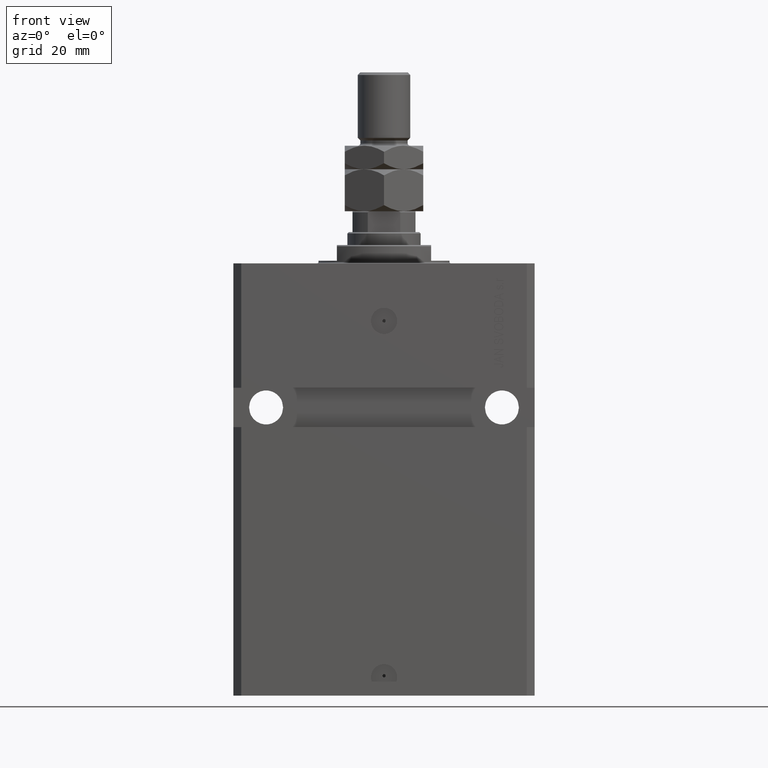
[diagram: clean part render]
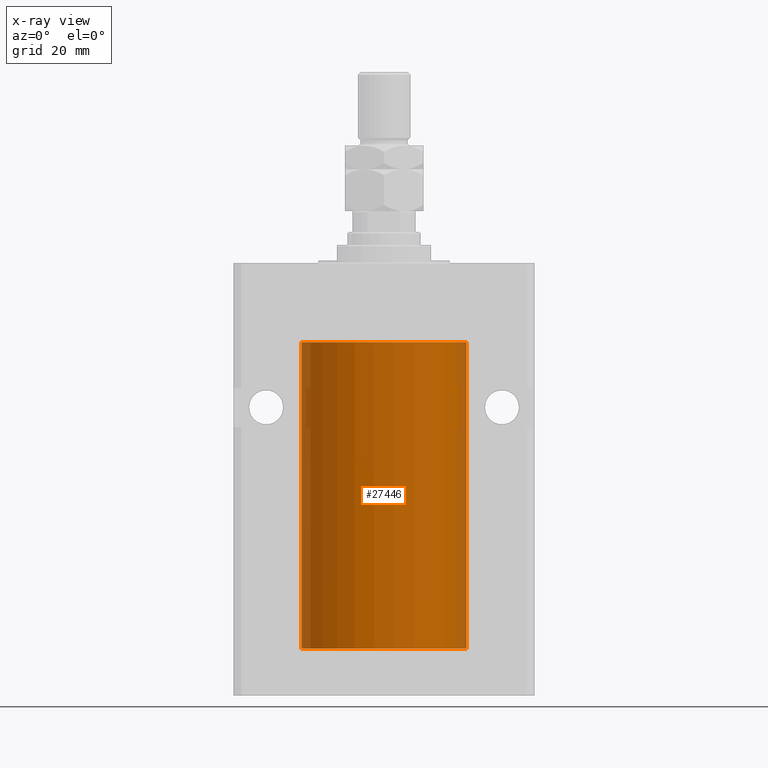
[diagram: x-ray — body ghosted, one internal face saturated and labeled with its STEP entity id]
A machine part, front view, then the same camera in x-ray: the body is ghosted and one INTERNAL B-rep face — a face not visible from any outside direction — is saturated and labeled: STEP entity #27446.
In plain terms, the highlighted cylindrical surface (partial cylindrical patch) has radius 31.5 mm, axis along (0, 0, 1).
Its self-contained STEP definition (entity closure, byte-faithful):
#584 = DIRECTION ( 'NONE',  ( 1.000000000000000000, 0.000000000000000000, 0.000000000000000000 ) ) ;
#761 = CARTESIAN_POINT ( 'NONE',  ( -31.50000000000006395, 3.480980645563073824E-13, -144.6250000000032401 ) ) ;
#3295 = VERTEX_POINT ( 'NONE', #761 ) ;
#4259 = CARTESIAN_POINT ( 'NONE',  ( -31.50000000000000000, -1.368427456661360094E-15, -143.3750000000000000 ) ) ;
#4521 = ORIENTED_EDGE ( 'NONE', *, *, #19724, .F. ) ;
#4599 = CARTESIAN_POINT ( 'NONE',  ( 31.50000000000000000, 3.210795403918932462E-15, -144.6250000000000284 ) ) ;
#4720 = CARTESIAN_POINT ( 'NONE',  ( 0.000000000000000000, 0.000000000000000000, -30.10000000000000142 ) ) ;
#5005 = DIRECTION ( 'NONE',  ( 1.000000000000000000, 0.000000000000000000, 0.000000000000000000 ) ) ;
#5763 = DIRECTION ( 'NONE',  ( 1.000000000000000000, 0.000000000000000000, 0.000000000000000000 ) ) ;
#6315 = CARTESIAN_POINT ( 'NONE',  ( 31.50000000000000000, 3.210795403918932462E-15, -144.6250000000000284 ) ) ;
#6396 = EDGE_CURVE ( 'NONE', #10203, #40436, #29543, .T. ) ;
#6858 = CIRCLE ( 'NONE', #37119, 31.50000000000000000 ) ;
#6984 = B_SPLINE_CURVE_WITH_KNOTS ( 'NONE', 3,
 ( #17703, #39084, #42954, #40030, #16991, #28878 ),
 .UNSPECIFIED., .F., .F.,
 ( 4, 2, 4 ),
 ( 0.001954083649707734349, 0.002442753259884905461, 0.002931422870062076573 ),
 .UNSPECIFIED. ) ;
#7897 = CARTESIAN_POINT ( 'NONE',  ( -31.50000000000000000, -1.368427456661360094E-15, -143.3750000000000000 ) ) ;
#7913 = CARTESIAN_POINT ( 'NONE',  ( -31.49527619204366857, -0.5575625051463340975, -143.6738430774043422 ) ) ;
#8391 = CARTESIAN_POINT ( 'NONE',  ( -31.49999999999999289, -0.1651478413230000331, -143.3749999999999716 ) ) ;
#8656 = DIRECTION ( 'NONE',  ( -0.000000000000000000, -0.000000000000000000, 1.000000000000000000 ) ) ;
#9463 = VECTOR ( 'NONE', #26858, 1000.000000000000000 ) ;
#10203 = VERTEX_POINT ( 'NONE', #18520 ) ;
#10489 = VERTEX_POINT ( 'NONE', #6315 ) ;
#10802 = VECTOR ( 'NONE', #28853, 1000.000000000000000 ) ;
#11401 = CARTESIAN_POINT ( 'NONE',  ( 31.49851597466318864, -0.3267811800504842323, -144.5571701479423155 ) ) ;
#11618 = EDGE_CURVE ( 'NONE', #27918, #10489, #13151, .T. ) ;
#13017 = CARTESIAN_POINT ( 'NONE',  ( 0.000000000000000000, 0.000000000000000000, -147.1000000000000227 ) ) ;
#13151 = B_SPLINE_CURVE_WITH_KNOTS ( 'NONE', 3,
 ( #22363, #26266, #44680, #11401, #41043, #4599 ),
 .UNSPECIFIED., .F., .F.,
 ( 4, 2, 4 ),
 ( 0.002931422870062076573, 0.003419574257808121083, 0.003907725645554165593 ),
 .UNSPECIFIED. ) ;
#14264 = CARTESIAN_POINT ( 'NONE',  ( -31.50000000000000000, 3.857637417314162689E-15, -147.1000000000000227 ) ) ;
#15361 = EDGE_CURVE ( 'NONE', #43185, #47074, #36072, .T. ) ;
#15682 = VERTEX_POINT ( 'NONE', #44660 ) ;
#15872 = EDGE_CURVE ( 'NONE', #30726, #3295, #17682, .T. ) ;
#16739 = ORIENTED_EDGE ( 'NONE', *, *, #6396, .F. ) ;
#16991 = CARTESIAN_POINT ( 'NONE',  ( 31.49379899281761652, -0.6250000000000300870, -143.8350496352848040 ) ) ;
#17682 = LINE ( 'NONE', #14264, #10802 ) ;
#17703 = CARTESIAN_POINT ( 'NONE',  ( 31.50000000000006395, 3.442404271195566139E-13, -143.3749999999967883 ) ) ;
#18520 = CARTESIAN_POINT ( 'NONE',  ( 31.50000000000006395, 3.442404271195566139E-13, -143.3749999999967883 ) ) ;
#19724 = EDGE_CURVE ( 'NONE', #30726, #15682, #6858, .T. ) ;
#20104 = VECTOR ( 'NONE', #43345, 1000.000000000000000 ) ;
#20333 = CYLINDRICAL_SURFACE ( 'NONE', #33493, 31.50000000000000000 ) ;
#22157 = CARTESIAN_POINT ( 'NONE',  ( -31.50000000000000000, 3.857637417314162689E-15, -147.1000000000000227 ) ) ;
#22273 = CARTESIAN_POINT ( 'NONE',  ( -31.50000000000006395, 3.480980645563073824E-13, -144.6250000000032401 ) ) ;
#22363 = CARTESIAN_POINT ( 'NONE',  ( 31.49379899281761652, -0.6250000000000300870, -144.0000000000000284 ) ) ;
#22481 = CARTESIAN_POINT ( 'NONE',  ( 31.50000000000000000, 0.000000000000000000, -147.1000000000000227 ) ) ;
#23062 = ORIENTED_EDGE ( 'NONE', *, *, #11618, .T. ) ;
#23282 = ORIENTED_EDGE ( 'NONE', *, *, #35607, .T. ) ;
#24451 = FACE_OUTER_BOUND ( 'NONE', #27376, .T. ) ;
#24980 = CARTESIAN_POINT ( 'NONE',  ( 0.000000000000000000, 0.000000000000000000, -147.1000000000000227 ) ) ;
#25432 = CARTESIAN_POINT ( 'NONE',  ( 31.50000000000000000, 0.000000000000000000, -147.1000000000000227 ) ) ;
#26266 = CARTESIAN_POINT ( 'NONE',  ( 31.49379899281760942, -0.6250000000000300870, -144.1647754387996088 ) ) ;
#26858 = DIRECTION ( 'NONE',  ( -0.000000000000000000, -0.000000000000000000, 1.000000000000000000 ) ) ;
#27376 = EDGE_LOOP ( 'NONE', ( #4521, #36834, #43635, #42669, #40961, #16739, #23282, #23062, #44788 ) ) ;
#27446 = ADVANCED_FACE ( 'NONE', ( #24451 ), #20333, .F. ) ;
#27568 = EDGE_CURVE ( 'NONE', #15682, #10489, #33643, .T. ) ;
#27918 = VERTEX_POINT ( 'NONE', #34556 ) ;
#28853 = DIRECTION ( 'NONE',  ( -0.000000000000000000, -0.000000000000000000, 1.000000000000000000 ) ) ;
#28878 = CARTESIAN_POINT ( 'NONE',  ( 31.49379899281761652, -0.6250000000000300870, -144.0000000000000284 ) ) ;
#29543 = LINE ( 'NONE', #25432, #44762 ) ;
#30726 = VERTEX_POINT ( 'NONE', #42499 ) ;
#31545 = DIRECTION ( 'NONE',  ( 0.000000000000000000, 0.000000000000000000, 1.000000000000000000 ) ) ;
#32959 = EDGE_CURVE ( 'NONE', #3295, #43185, #47160, .T. ) ;
#33446 = CARTESIAN_POINT ( 'NONE',  ( -31.49380174372966223, -0.6248613812773761156, -144.1653655539884085 ) ) ;
#33493 = AXIS2_PLACEMENT_3D ( 'NONE', #13017, #8656, #5005 ) ;
#33643 = LINE ( 'NONE', #22481, #9463 ) ;
#33683 = CARTESIAN_POINT ( 'NONE',  ( -31.49528704891774211, -0.5569519313505124636, -144.3270938121662823 ) ) ;
#33928 = CARTESIAN_POINT ( 'NONE',  ( -31.49379625064871391, -0.6251381781549149030, -143.8356839311847182 ) ) ;
#34383 = DIRECTION ( 'NONE',  ( 0.000000000000000000, 0.000000000000000000, 1.000000000000000000 ) ) ;
#34556 = CARTESIAN_POINT ( 'NONE',  ( 31.49379899281761652, -0.6250000000000300870, -144.0000000000000284 ) ) ;
#35607 = EDGE_CURVE ( 'NONE', #10203, #27918, #6984, .T. ) ;
#36072 = LINE ( 'NONE', #22157, #20104 ) ;
#36369 = AXIS2_PLACEMENT_3D ( 'NONE', #4720, #34383, #584 ) ;
#36834 = ORIENTED_EDGE ( 'NONE', *, *, #15872, .T. ) ;
#37119 = AXIS2_PLACEMENT_3D ( 'NONE', #24980, #31545, #5763 ) ;
#39084 = CARTESIAN_POINT ( 'NONE',  ( 31.50000000000000711, -0.1632157801386604767, -143.3749999999998579 ) ) ;
#40030 = CARTESIAN_POINT ( 'NONE',  ( 31.49528358446201892, -0.5571510427948052069, -143.6732007340060306 ) ) ;
#40436 = VERTEX_POINT ( 'NONE', #44224 ) ;
#40961 = ORIENTED_EDGE ( 'NONE', *, *, #46924, .T. ) ;
#41043 = CARTESIAN_POINT ( 'NONE',  ( 31.50000000000000000, -0.1650602271992174519, -144.6250000000000568 ) ) ;
#41675 = CARTESIAN_POINT ( 'NONE',  ( -31.50000000000000000, -0.1631292369235461670, -144.6250000000001705 ) ) ;
#42499 = CARTESIAN_POINT ( 'NONE',  ( -31.50000000000000000, 3.857637417314162689E-15, -147.1000000000000227 ) ) ;
#42669 = ORIENTED_EDGE ( 'NONE', *, *, #15361, .T. ) ;
#42954 = CARTESIAN_POINT ( 'NONE',  ( 31.49851930977803960, -0.3264760966897971572, -143.4426595268315339 ) ) ;
#43185 = VERTEX_POINT ( 'NONE', #7897 ) ;
#43345 = DIRECTION ( 'NONE',  ( -0.000000000000000000, -0.000000000000000000, 1.000000000000000000 ) ) ;
#43635 = ORIENTED_EDGE ( 'NONE', *, *, #32959, .T. ) ;
#44224 = CARTESIAN_POINT ( 'NONE',  ( 31.50000000000000000, 0.000000000000000000, -30.10000000000000142 ) ) ;
#44660 = CARTESIAN_POINT ( 'NONE',  ( 31.50000000000000000, 0.000000000000000000, -147.1000000000000227 ) ) ;
#44680 = CARTESIAN_POINT ( 'NONE',  ( 31.49527967292564057, -0.5573624224366721114, -144.3264531259596311 ) ) ;
#44762 = VECTOR ( 'NONE', #47265, 1000.000000000000000 ) ;
#44788 = ORIENTED_EDGE ( 'NONE', *, *, #27568, .F. ) ;
#45325 = CARTESIAN_POINT ( 'NONE',  ( -31.49852099238383119, -0.3263081977449492910, -144.5574125724066903 ) ) ;
#45654 = CIRCLE ( 'NONE', #36369, 31.50000000000000000 ) ;
#46924 = EDGE_CURVE ( 'NONE', #47074, #40436, #45654, .T. ) ;
#47074 = VERTEX_POINT ( 'NONE', #47425 ) ;
#47160 = B_SPLINE_CURVE_WITH_KNOTS ( 'NONE', 3,
 ( #22273, #41675, #45325, #33683, #33446, #33928, #7913, #47988, #8391, #4259 ),
 .UNSPECIFIED., .F., .F.,
 ( 4, 2, 2, 2, 4 ),
 ( 0.001954083649707802437, 0.002442494148669407429, 0.002930904647631011987, 0.003419315146592616979, 0.003907725645554221972 ),
 .UNSPECIFIED. ) ;
#47265 = DIRECTION ( 'NONE',  ( -0.000000000000000000, -0.000000000000000000, 1.000000000000000000 ) ) ;
#47425 = CARTESIAN_POINT ( 'NONE',  ( -31.50000000000000000, 3.857637417314162689E-15, -30.10000000000000142 ) ) ;
#47988 = CARTESIAN_POINT ( 'NONE',  ( -31.49851430197701063, -0.3269482044720625757, -143.4429011246694188 ) ) ;